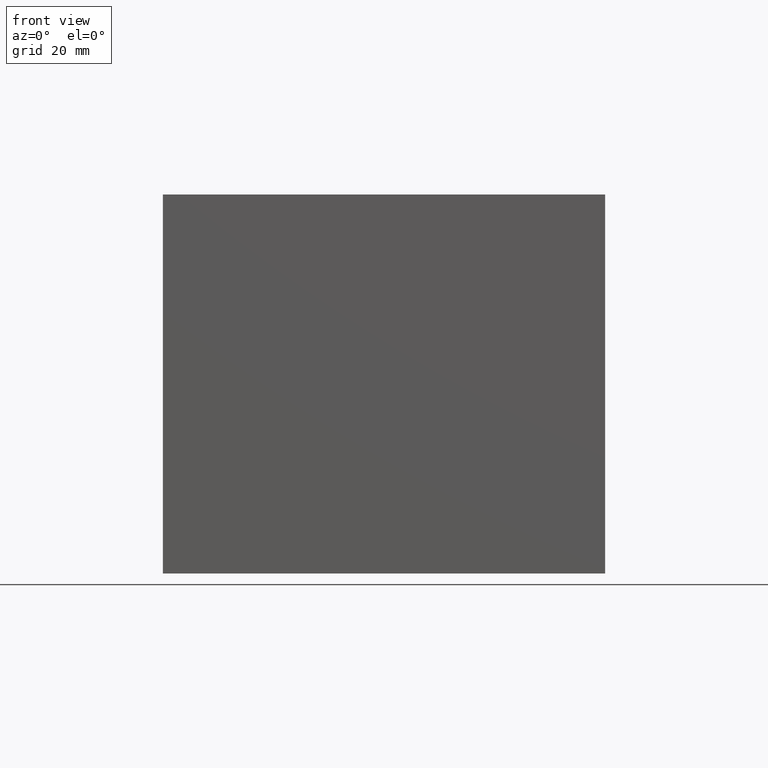
[diagram: clean part render]
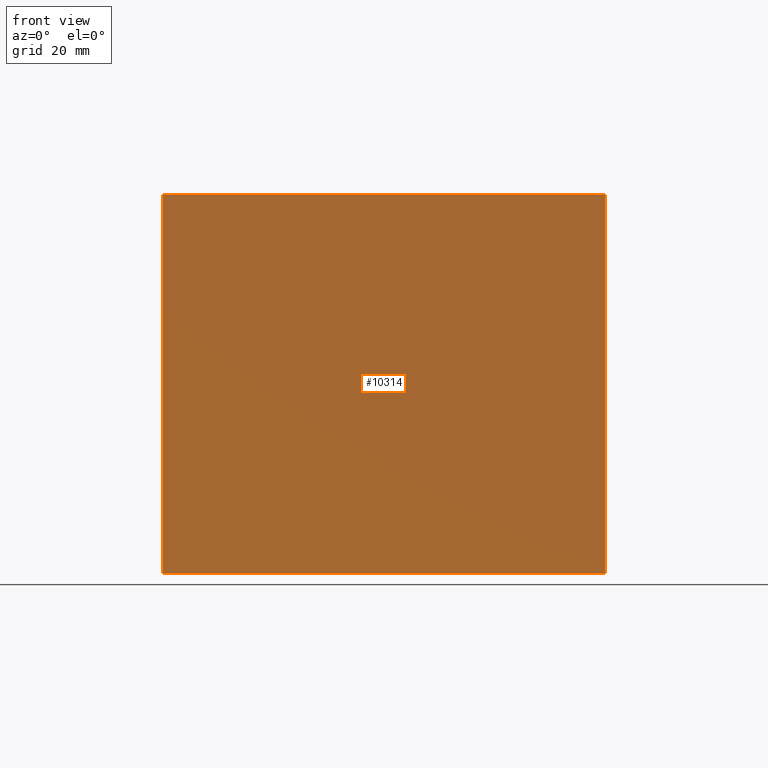
[diagram: same view with one face highlighted and labeled with its STEP entity id]
A machine part, front view. The second image highlights one B-rep face of the part: STEP entity #10314.
In plain terms, the highlighted planar face has unit normal (0, -1, 0).
Its self-contained STEP definition (entity closure, byte-faithful):
#597=PLANE('',#10839);
#1122=FACE_OUTER_BOUND('',#1711,.T.);
#1711=EDGE_LOOP('',(#9174,#9175,#9176,#9177));
#1757=LINE('',#13051,#2737);
#2126=LINE('',#15734,#3106);
#2608=LINE('',#17237,#3588);
#2704=LINE('',#17718,#3684);
#2737=VECTOR('',#10896,10.);
#3106=VECTOR('',#11471,10.);
#3588=VECTOR('',#12305,10.);
#3684=VECTOR('',#12841,10.);
#4019=VERTEX_POINT('',#13049);
#4020=VERTEX_POINT('',#13050);
#4423=VERTEX_POINT('',#15733);
#4788=VERTEX_POINT('',#17235);
#5002=EDGE_CURVE('',#4019,#4020,#1757,.T.);
#5603=EDGE_CURVE('',#4019,#4423,#2126,.T.);
#6149=EDGE_CURVE('',#4020,#4788,#2608,.T.);
#6372=EDGE_CURVE('',#4423,#4788,#2704,.T.);
#9174=ORIENTED_EDGE('',*,*,#5002,.T.);
#9175=ORIENTED_EDGE('',*,*,#6149,.T.);
#9176=ORIENTED_EDGE('',*,*,#6372,.F.);
#9177=ORIENTED_EDGE('',*,*,#5603,.F.);
#10314=ADVANCED_FACE('',(#1122),#597,.T.);
#10839=AXIS2_PLACEMENT_3D('',#17717,#12839,#12840);
#10896=DIRECTION('',(1.,0.,0.));
#11471=DIRECTION('',(0.,0.,1.));
#12305=DIRECTION('',(0.,0.,1.));
#12839=DIRECTION('center_axis',(0.,-1.,0.));
#12840=DIRECTION('ref_axis',(1.,0.,0.));
#12841=DIRECTION('',(1.,0.,0.));
#13049=CARTESIAN_POINT('',(0.,0.,0.));
#13050=CARTESIAN_POINT('',(88.9,0.,0.));
#13051=CARTESIAN_POINT('',(0.,0.,0.));
#15733=CARTESIAN_POINT('',(0.,0.,76.2));
#15734=CARTESIAN_POINT('',(0.,0.,0.));
#17235=CARTESIAN_POINT('',(88.9,0.,76.2));
#17237=CARTESIAN_POINT('',(88.9,0.,0.));
#17717=CARTESIAN_POINT('Origin',(0.,0.,0.));
#17718=CARTESIAN_POINT('',(0.,0.,76.2));